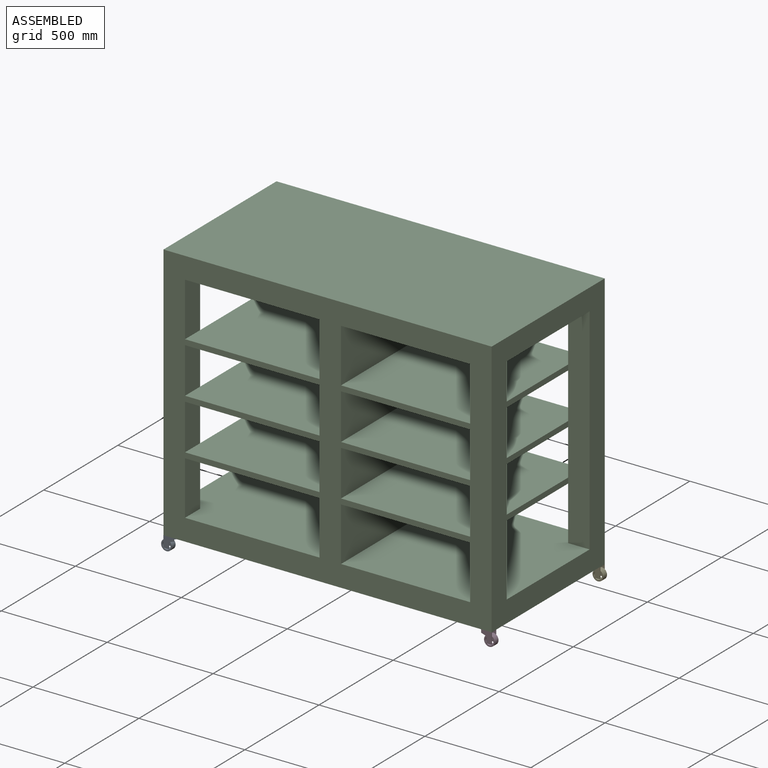
[diagram: assembled view]
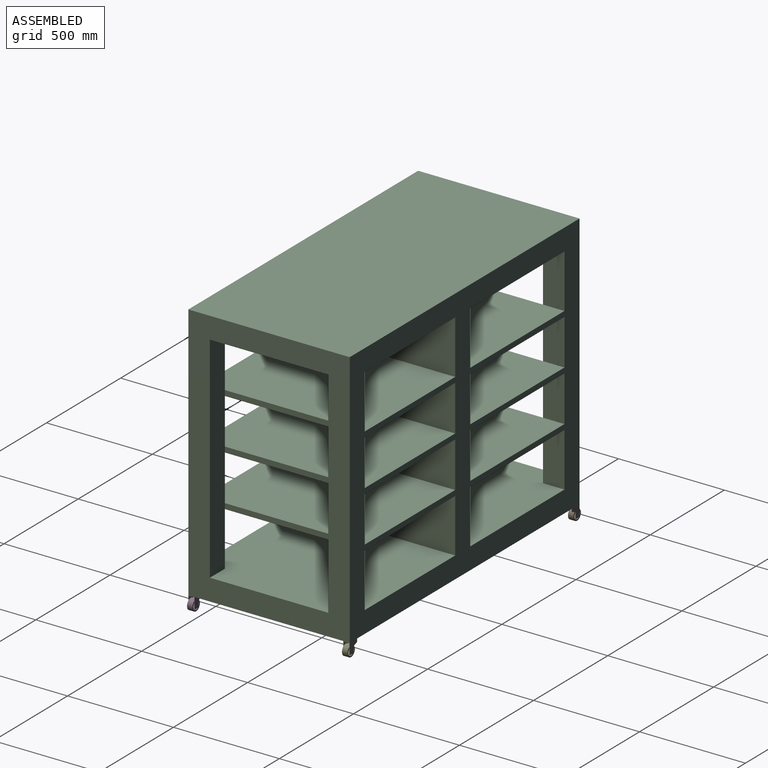
[diagram: assembled view, second angle]
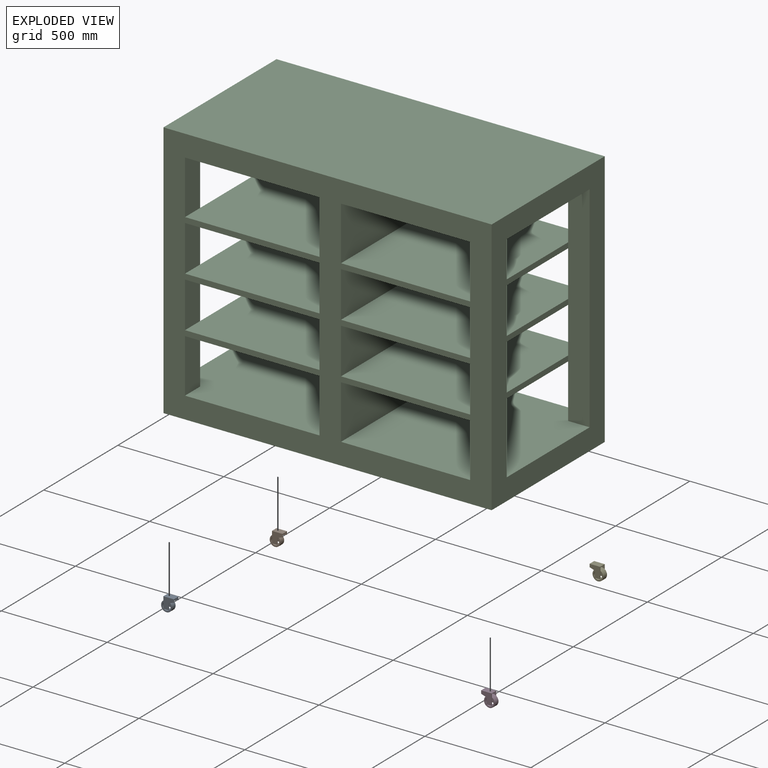
[diagram: exploded view]
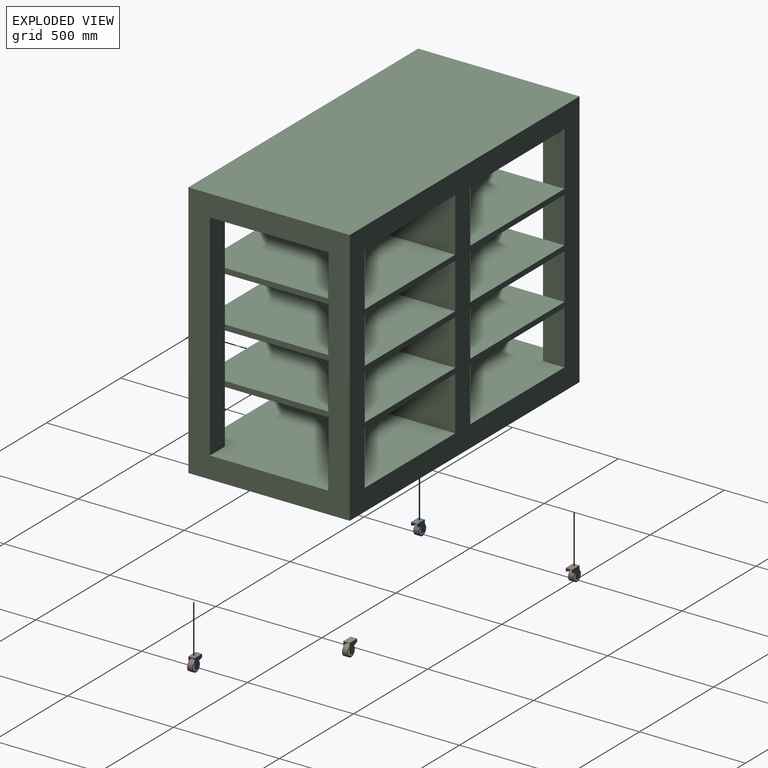
[diagram: exploded view, second angle]
ASSEMBLY  parts=5 mates=7
PART A: 31 faces, bbox 62.5x30.6x66.1 mm
  f0: plane 49.75x18.9mm, normal (0,1,0), area 733mm2, adj f1,f5,f8,f9,f20,f21
  f1: plane 50.76x2.54mm, normal (1,0,0), area 128.9mm2, adj f0,f2,f3,f7,f11,f21
  f2: plane 50.8x49.75mm, normal (0,-1,0), area 1681.3mm2, adj f1,f7,f8,f9,f10,f21,f27
  f3: plane 50.8x47.4mm, normal (0,-1,0), area 706.2mm2, adj f1,f4,f5,f9,f10
  f4: cylinder r=19.05mm len=38.1mm, axis (0,-1,0), area 3040.2mm2, adj f3,f6,f11,f12
  f5: cylinder r=25.4mm len=50.8mm, axis (0,-1,0), area 4053.7mm2, adj f0,f3,f6,f19
  f6: plane 50.8x47.4mm, normal (0,1,0), area 704.8mm2, adj f4,f5,f13,f15,f16
  f7: plane 25.4x2.54mm, normal (0,0,-1), area 64.5mm2, adj f1,f2,f10,f11
  f8: plane 14.6x2.55mm, normal (-1,0,0), area 37.1mm2, adj f0,f2,f9,f20,f22,f23,f25,f27
  f9: plane 24.35x8.18mm, normal (-0.32,0,-0.95), area 65.2mm2, adj f0,f2,f3,f8,f10
  f10: plane 30.58x2.54mm, normal (-1,0,0), area 77.7mm2, adj f2,f3,f7,f9,f11
  f11: plane 31.75x25.4mm, normal (0,1,0), area 767.7mm2, adj f1,f4,f7,f10
  f12: plane 31.7x25.37mm, normal (0,-1,0), area 765.6mm2, adj f4,f13,f14,f15
  f13: plane 50.71x2.54mm, normal (1,0,0), area 128.8mm2, adj f6,f12,f14,f18,f19,f21
  f14: plane 25.37x2.54mm, normal (0,0,-1), area 64.4mm2, adj f12,f13,f15,f18
  f15: plane 30.12x2.54mm, normal (-1,0,0), area 76.5mm2, adj f6,f12,f14,f16,f18
  f16: plane 24.3x8.36mm, normal (-0.33,0,-0.95), area 65.3mm2, adj f6,f15,f17,f18,f19
  f17: plane 12.23x2.54mm, normal (-1,0,-0.01), area 31.1mm2, adj f16,f18,f19,f20
  f18: plane 53.25x49.75mm, normal (0,1,0), area 1811.9mm2, adj f13,f14,f15,f16,f17,f20,f21,f29
  f19: plane 49.74x19.12mm, normal (0,-1,0), area 738mm2, adj f5,f13,f16,f17,f21
  f20: plane 27.95x2.55mm, normal (-1,0,0), area 71mm2, adj f0,f8,f17,f18,f21,f30
  f21: plane 49.75x30.57mm, normal (0,0,-1), area 1268.3mm2, adj f0,f1,f2,f13,f18,f19,f20,f27
  f22: plane 49.75x0.04mm, normal (0,1,0), area 2mm2, adj f8,f24,f25,f30
  f23: plane 49.75x0.04mm, normal (0,-1,0), area 2mm2, adj f8,f24,f25,f26
  f24: plane 2.55x2.55mm, normal (1,0,0), area 6.5mm2, adj f22,f23,f25,f29
  f25: plane 49.75x2.54mm, normal (0,0,1), area 126.4mm2, adj f8,f22,f23,f24
  f26: plane 49.76x0.09mm, normal (0,0,1), area 4.6mm2, adj f23,f27,f28,f29
  f27: plane 2.55x0.1mm, normal (-1,0,0), area 0.2mm2, adj f2,f8,f21,f26,f28
  f28: plane 49.75x2.54mm, normal (0,-1,0), area 126.4mm2, adj f21,f26,f27,f29
  f29: plane 30.58x2.55mm, normal (1,0,0), area 71.3mm2, adj f18,f21,f24,f26,f28,f30
  f30: plane 49.76x27.94mm, normal (0,0,1), area 1390.1mm2, adj f18,f20,f22,f29
PART B: same geometry as A
PART C: 56 faces, bbox 1549.4x762x1219.2 mm
  f0: plane 254x101.6mm, normal (1,0,0), area 25806.4mm2, adj f15,f17,f45,f55
  f1: plane 215.9x101.6mm, normal (1,0,0), area 21935.4mm2, adj f28,f41,f45,f55
  f2: plane 215.9x101.6mm, normal (1,0,0), area 21935.4mm2, adj f31,f42,f45,f55
  f3: plane 254x101.6mm, normal (1,0,0), area 25806.4mm2, adj f34,f43,f45,f55
  f4: plane 1219.2x762mm, normal (-1,0,0), area 361289.6mm2, adj f10,f11,f17,f43,f44,f45,f54,f55
  f5: plane 215.9x101.6mm, normal (-1,0,0), area 21935.4mm2, adj f19,f38,f45,f49
  f6: plane 215.9x101.6mm, normal (-1,0,0), area 21935.4mm2, adj f22,f39,f45,f49
  f7: plane 254x101.6mm, normal (-1,0,0), area 25806.4mm2, adj f25,f40,f45,f49
  f8: plane 254x101.6mm, normal (-1,0,0), area 25806.4mm2, adj f12,f14,f45,f49
  f9: plane 1219.2x762mm, normal (1,0,0), area 361289.6mm2, adj f10,f11,f14,f40,f44,f45,f49,f50
  f10: plane 1549.4x762mm, normal (0,0,1), area 1180642.8mm2, adj f4,f9,f44,f45
  f11: plane 1549.4x762mm, normal (0,0,-1), area 1180642.8mm2, adj f4,f9,f44,f45
  f12: plane 762x609.6mm, normal (0,0,1), area 464515.2mm2, adj f8,f13,f36,f44,f45,f48
  f13: plane 762x254mm, normal (1,0,0), area 193548mm2, adj f12,f14,f44,f45
  f14: plane 762x711.2mm, normal (0,0,-1), area 521289.3mm2, adj f8,f9,f13,f36,f44,f45,f49,f50
  f15: plane 762x635mm, normal (0,0,1), area 483870mm2, adj f0,f16,f37,f44,f45,f51
  f16: plane 254x101.6mm, normal (1,0,0), area 25806.4mm2, adj f15,f17,f44,f54
  f17: plane 762x736.6mm, normal (0,0,-1), area 540644.1mm2, adj f0,f4,f16,f37,f44,f45,f54,f55
  f18: plane 762x215.9mm, normal (1,0,0), area 164515.8mm2, adj f19,f38,f44,f45
  f19: plane 762x609.6mm, normal (0,0,-1), area 464515.2mm2, adj f5,f18,f20,f44,f45,f48
  f20: plane 215.9x101.6mm, normal (-1,0,0), area 21935.4mm2, adj f19,f38,f44,f50
  f21: plane 762x215.9mm, normal (1,0,0), area 164515.8mm2, adj f22,f39,f44,f45
  f22: plane 762x609.6mm, normal (0,0,-1), area 464515.2mm2, adj f6,f21,f23,f44,f45,f46
  f23: plane 215.9x101.6mm, normal (-1,0,0), area 21935.4mm2, adj f22,f39,f44,f50
  f24: plane 762x254mm, normal (1,0,0), area 193548mm2, adj f25,f40,f44,f45
  f25: plane 762x609.6mm, normal (0,0,-1), area 464515.2mm2, adj f7,f24,f26,f44,f45,f47
  f26: plane 254x101.6mm, normal (-1,0,0), area 25806.4mm2, adj f25,f40,f44,f50
  f27: plane 215.9x101.6mm, normal (1,0,0), area 21935.4mm2, adj f28,f41,f44,f54
  f28: plane 762x635mm, normal (0,0,-1), area 483870mm2, adj f1,f27,f29,f44,f45,f51
  f29: plane 762x215.9mm, normal (-1,0,0), area 164515.8mm2, adj f28,f41,f44,f45
  f30: plane 215.9x101.6mm, normal (1,0,0), area 21935.4mm2, adj f31,f42,f44,f54
  f31: plane 762x635mm, normal (0,0,-1), area 483870mm2, adj f2,f30,f32,f44,f45,f52
  f32: plane 762x215.9mm, normal (-1,0,0), area 164515.8mm2, adj f31,f42,f44,f45
  f33: plane 254x101.6mm, normal (1,0,0), area 25806.4mm2, adj f34,f43,f44,f54
  f34: plane 762x635mm, normal (0,0,-1), area 483870mm2, adj f3,f33,f35,f44,f45,f53
  f35: plane 762x254mm, normal (-1,0,0), area 193548mm2, adj f34,f43,f44,f45
  f36: plane 254x101.6mm, normal (-1,0,0), area 25806.4mm2, adj f12,f14,f44,f50
  f37: plane 762x254mm, normal (-1,0,0), area 193548mm2, adj f15,f17,f44,f45
  f38: plane 762x609.6mm, normal (0,0,1), area 464515.2mm2, adj f5,f18,f20,f44,f45,f46
  f39: plane 762x609.6mm, normal (0,0,1), area 464515.2mm2, adj f6,f21,f23,f44,f45,f47
  f40: plane 762x711.2mm, normal (0,0,1), area 521289.3mm2, adj f7,f9,f24,f26,f44,f45,f49,f50
  f41: plane 762x635mm, normal (0,0,1), area 483870mm2, adj f1,f27,f29,f44,f45,f52
  f42: plane 762x635mm, normal (0,0,1), area 483870mm2, adj f2,f30,f32,f44,f45,f53
  f43: plane 762x736.6mm, normal (0,0,1), area 540644.1mm2, adj f3,f4,f33,f35,f44,f45,f54,f55
  f44: plane 1549.4x1219.2mm, normal (0,1,0), area 719353.4mm2, adj f4,f9,f10,f11,f12,f13,f14,f15
  f45: plane 1549.4x1219.2mm, normal (0,-1,0), area 719353.4mm2, adj f0,f1,f2,f3,f4,f5,f6,f7
  f46: plane 558.8x25.4mm, normal (1,0,0), area 14193.5mm2, adj f22,f38,f49,f50
  f47: plane 558.8x25.4mm, normal (1,0,0), area 14193.5mm2, adj f25,f39,f49,f50
  f48: plane 558.8x25.4mm, normal (1,0,0), area 14193.5mm2, adj f12,f19,f49,f50
  f49: plane 1016x101.6mm, normal (0,1,0), area 103225.6mm2, adj f5,f6,f7,f8,f9,f14,f40,f46
  f50: plane 1016x101.6mm, normal (0,-1,0), area 103225.6mm2, adj f9,f14,f20,f23,f26,f36,f40,f46
  f51: plane 558.8x25.4mm, normal (-1,0,0), area 14193.5mm2, adj f15,f28,f54,f55
  f52: plane 558.8x25.4mm, normal (-1,0,0), area 14193.5mm2, adj f31,f41,f54,f55
  f53: plane 558.8x25.4mm, normal (-1,0,0), area 14193.5mm2, adj f34,f42,f54,f55
  f54: plane 1016x101.6mm, normal (0,-1,0), area 103225.6mm2, adj f4,f16,f17,f27,f30,f33,f43,f51
  f55: plane 1016x101.6mm, normal (0,1,0), area 103225.6mm2, adj f0,f1,f2,f3,f4,f17,f43,f51
PART D: same geometry as A
PART E: same geometry as A
PLACE A rot(axis=(0,0,1),180deg) t=(-1929.51,-675.57,-124.44)mm
PLACE B rot(axis=(0,0,1),180deg) t=(-1928.63,55.41,-124.48)mm
PLACE C t=(-391.93,-704.05,525.76)mm
PLACE D t=(-404.63,-701.51,-124.48)mm
PLACE E t=(-404.64,30.01,-124.44)mm
MATE planar D.f25 <-> C.f11  axis (0,0,1) through (-391.93,-704.05,-83.84)mm
MATE planar B.f30 <-> C.f11  axis (0,0,1) through (-1941.33,55.41,-83.88)mm
MATE planar A.f30 <-> C.f11  axis (0,0,1) through (-1942.22,-703.51,-83.84)mm
MATE planar A.f30 <-> C.f11  axis (0,0,1) through (-1942.22,-703.51,-83.84)mm
MATE planar D.f30 <-> C.f11  axis (0,0,1) through (-391.93,-701.51,-83.88)mm
MATE planar E.f30 <-> C.f11  axis (0,0,1) through (-391.93,57.95,-83.84)mm
MATE planar B.f25 <-> C.f11  axis (0,0,1) through (-1941.33,57.95,-83.84)mm
